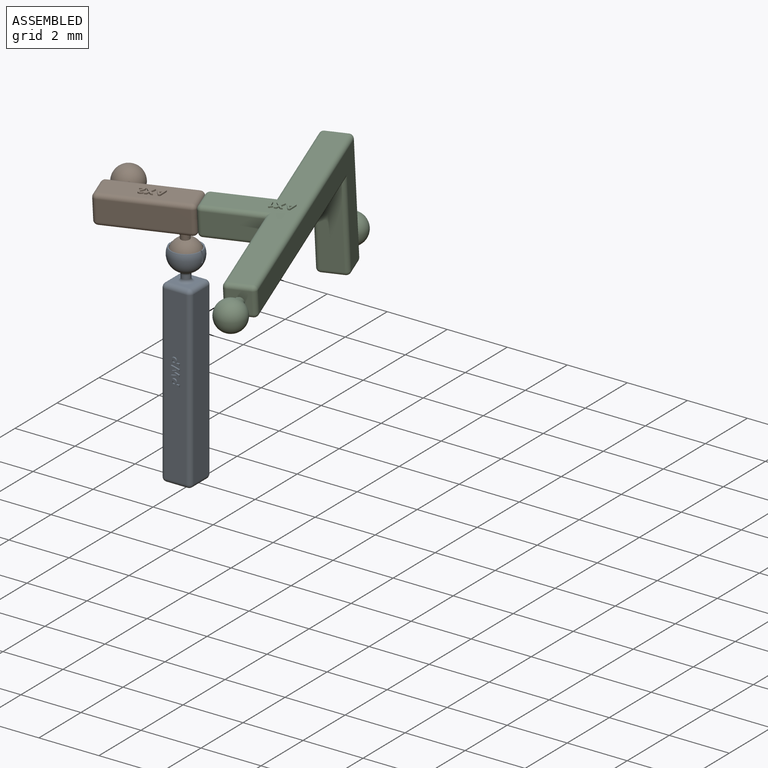
[diagram: assembled view]
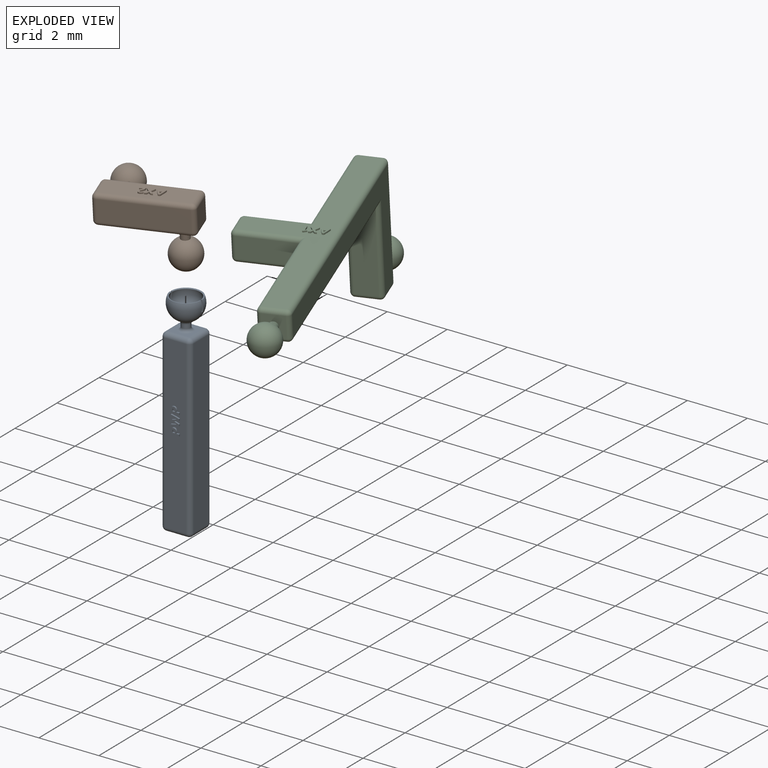
[diagram: exploded view]
GUIDED TOUR — FREECAD ASSEMBLY "assembly3wb_test"

This assembly has 3 components, labeled P0..P2 below (a component is one placed body or linked part; the same part can appear more than once), held together by 0 modeled joints plus 2 derived contact edges. A joint is a constraint between two components; its type names the relative motion it leaves free:
  CONTACT — a derived adjacency edge — the two components touch in the source model (clearance under 2% of the assembly's diagonal); it is measured from the geometry, not a modeled constraint.
Axis/direction vectors are unit vectors and 'through' points are millimeter coordinates, both in the assembly's world frame.

MATES
  1. CONTACT "contact_0_1": P0 <-> P1, contact direction (0.000, 0.000, 1.000) through (0.57, -0.03, 3.83) mm (derived from contact, not a modeled constraint)
  2. CONTACT "contact_1_2": P1 <-> P2, contact direction (0.838, 0.219, -0.500) through (1.09, -0.32, 5.96) mm (derived from contact, not a modeled constraint)

ASSEMBLY ORDER
  1. P1 — the base component [order heuristic]
  2. P0 — core [order heuristic]
  3. P2 [order verified]
Order-tag legend:
  [order verified] — this step's position reverses a verified removal order: the component was checked to insert without passing through the ones already placed.
  [order heuristic] — the first 2 components form the assembly's core: parts whose collision-free extraction could not be verified, listed in mate-graph order.

Of the 3 components, 2 carry a construction recipe — the FreeCAD feature program (sketches with constraints, then the solid features that consume them) that regenerates the part from scratch, quoted from this document or from the linked companion document it references; the rest are supplied as boundary geometry only. The tour below walks the components in assembly order: each is shown spotlighted twice — in the assembled view, then in the exploded view, where a leader line traces a displaced component back to its assembled socket (components that stay in place when exploded have no leader line; saturated green if recipe-attached, orange if geometry-only; every other component desaturated gray) — followed by its recipe or geometry summary and the mates that hold it.
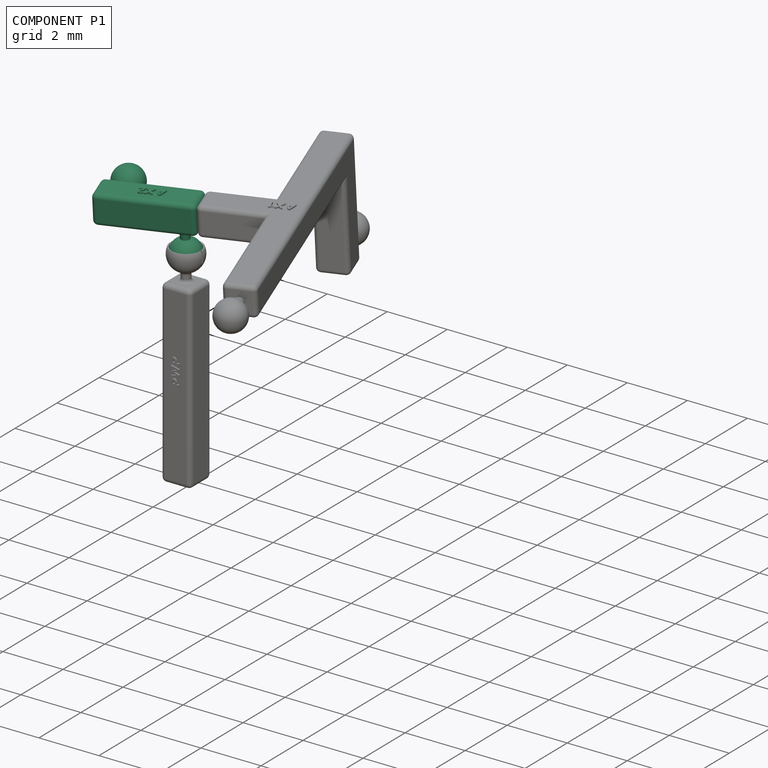
[diagram: component P1 — assembled]
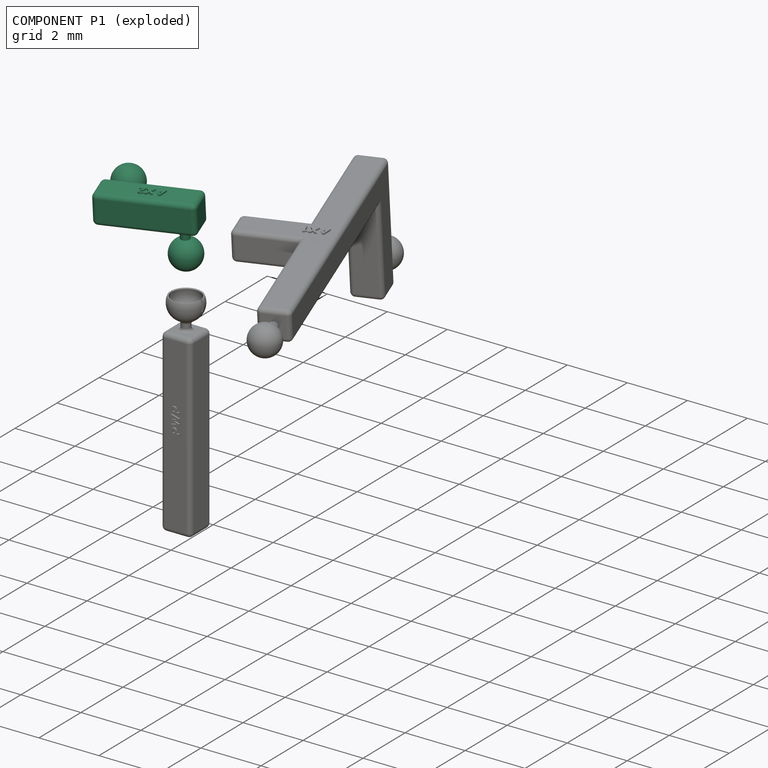
[diagram: component P1 — exploded]
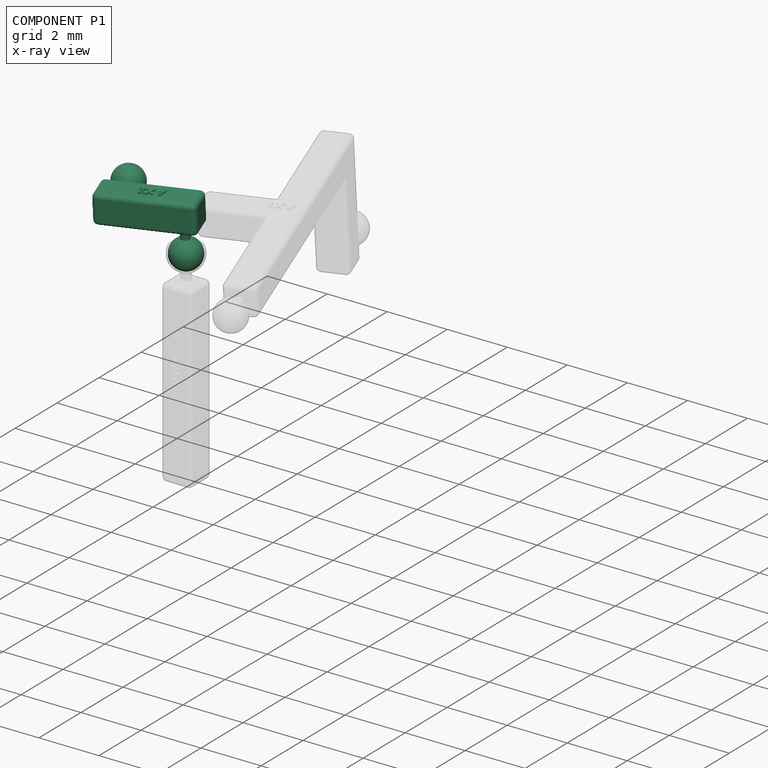
[diagram: component P1 — x-ray view]
COMPONENT P1 — recipe-attached ("AX2Body", a linked part whose construction recipe lives in a companion FreeCAD document of the same project; that document's serialized recipe follows).
Held by: resting contact with P0 (derived edge); resting contact with P2 (derived edge).
Construction recipe (the companion document, serialized — sketch geometry with constraints, then the solid features built on it; lengths are millimeters unless a unit is written):

FCSTD DOCUMENT  (FreeCAD 0.20R29177 (Git))
Label: ax2
License: All rights reserved
LicenseURL: http://en.wikipedia.org/wiki/All_rights_reserved
objects: PartDesign::Body×4, Sketcher::SketchObject×3, PartDesign::Pad×3, PartDesign::Fillet×2, PartDesign::FeatureBase×2, Spreadsheet::Sheet×1, PartDesign::Plane×1, PartDesign::Line×1, PartDesign::Revolution×1, Part::MultiFuse×1, Part::Part2DObjectPython×1, PartDesign::Point×1
note: 26 computed .brp shape members not serialized (recipe doc carries the construction recipe); baked Part::Feature solids carry a one-line shape summary decoded from their .brp

FEATURE [Spreadsheet::Sheet] Spreadsheet
  cells = A2=Reference ; A3=RefLength; B3(RefLength)==1mm; A5=Main Beam; A6=Length; B6(Length)==3 * RefLength; A7=Width; B7(Width)==1 * RefLength; A8=Height; B8(Height)==1 * RefLength; A9=EdgeFilletRadius; B9(EdgeFilletRadius)==0.15 * RefLength; A11=BallJoint Common; A12=ConnLength; B12(ConnLength)==0.3 * RefLength; A13=ConnDiameter; B13(ConnDiameter)==0.3 * RefLength; A14=BallDiameter; B14(BallDiameter)==1 * RefLength; A15=BallDatumPlanceZOffset; B15(BallDatumPlanceZOffset)==ConnLength + 0.5 * BallDiameter; A16=ConnPadLength; B16(ConnPadLength)==ConnLength + 0.5 * BallDiameter; A17=ConnFilletRadius; B17(ConnFilletRadius)==0.1 * RefLength; A19=BallJoint 1; A20=BallJoint1XPos; B20(BallJoint1XPos)==-0.5 * Length + 0.5 * BallDiameter; A21=BallJoint1YPos; B21(BallJoint1YPos)==0 * Width; A22=BallJoint1ZPos; B22(BallJoint1ZPos)==Height * -0.5; A24=BallJoint 2; A25=BallJoint2XPos; B25(BallJoint2XPos)==0.5 * Length - 0.5 * BallDiameter; A26=BallJoint2YPos; B26(BallJoint2YPos)==-0.5 * Width; A27=BallJoint2ZPos; B27(BallJoint2ZPos)==0 * Height; A29=Label; A30=LabelString; B30(LabelString)=AX2; A31=LabelSize; B31(LabelSize)==0.15 * RefLength; A32=LabelXPos; B32(LabelXPos)==-0.5 * RefLength; A33=LabelYPos; B33(LabelYPos)==-0.1 * RefLength; A34=LabelPadHeight; B34(LabelPadHeight)==0.05 * RefLength; A36=Ball 1 Center Point; A37=Ball1CenterX; B37(Ball1CenterX)==BallJoint1XPos; A38=Ball1CenterY; B38(Ball1CenterY)==BallJoint1YPos; A39=Ball1CenterZ; B39(Ball1CenterZ)==BallJoint1ZPos - ConnLength - 0.5 * BallDiameter
FEATURE [Sketcher::SketchObject] Sketch  label="BeamSketch"
  FullyConstrained = true
  MapMode = 5
  Support = -> [XY_Plane]
  expr: Constraints[10] = Spreadsheet.Width
  expr: Constraints[9] = Spreadsheet.Length
  sketch-geometry (4):
    g0: LineSegment StartX=-1.5 StartY=0.5 StartZ=0 EndX=1.5 EndY=0.5 EndZ=0
    g1: LineSegment StartX=1.5 StartY=0.5 StartZ=0 EndX=1.5 EndY=-0.5 EndZ=0
    g2: LineSegment StartX=1.5 StartY=-0.5 StartZ=0 EndX=-1.5 EndY=-0.5 EndZ=0
    g3: LineSegment StartX=-1.5 StartY=-0.5 StartZ=0 EndX=-1.5 EndY=0.5 EndZ=0
  constraints (11):
    c: Coincident(g0,g1)
    c: Coincident(g1,g2)
    c: Coincident(g2,g3)
    c: Coincident(g3,g0)
    c: Horizontal(g0)
    c: Horizontal(g2)
    c: Vertical(g1)
    c: Vertical(g3)
    c: Symmetric(g0,g1,g-1)
    c: DistanceX(g0,g0) = 3
    c: DistanceY(g1,g1) = 1
FEATURE [PartDesign::Pad] Pad  label="BeamPad"
  Direction = (0,0,1)
  Length = 1
  Length2 = 10
  Midplane = true
  Profile = -> Sketch
  ReferenceAxis = -> Sketch [N_Axis]
  Type = 0
  expr: Length = Spreadsheet.Height
FEATURE [PartDesign::Fillet] Fillet
  Base = -> Pad [Edge10]
  BaseFeature = -> Pad
  Radius = 0.15
  SupportTransform = false
  UseAllEdges = true
  expr: Radius = Spreadsheet.EdgeFilletRadius
FEATURE [PartDesign::Body] Body  label="BeamBody"
  Group = -> [Sketch,Pad,Fillet]
  Origin = -> Origin
  Tip = -> Fillet
FEATURE [Sketcher::SketchObject] Sketch001  label="ConnSketch"
  FullyConstrained = true
  MapMode = 5
  Support = -> [XY_Plane001]
  expr: Constraints[1] = Spreadsheet.ConnDiameter
  sketch-geometry (1):
    g0: Circle CenterX=0 CenterY=0 CenterZ=0 NormalX=0 NormalY=0 NormalZ=1 AngleXU=0 Radius=0.15
  constraints (2):
    c: Coincident(g0,g-1)
    c: Diameter(g0) = 0.3
FEATURE [PartDesign::Pad] Pad001  label="ConnPad"
  Direction = (0,0,1)
  Length = 0.8
  Length2 = 10
  Profile = -> Sketch001
  ReferenceAxis = -> Sketch001 [N_Axis]
  Type = 0
  expr: Length = Spreadsheet.ConnPadLength
FEATURE [PartDesign::Plane] DatumPlane  label="BallDatumPlane"
  AttachmentOffset = pos=(0,0.8,0) rot=(0,0,1;0rad)
  Length = 60
  MapMode = 5
  Placement = pos=(0,-2e-16,0.8) rot=(1,0,0;1.5708rad)
  ResizeMode = 0
  Support = -> [XZ_Plane001]
  Width = 60
  expr: .AttachmentOffset.Base.y = Spreadsheet.BallDatumPlanceZOffset
FEATURE [Sketcher::SketchObject] Sketch002  label="BallSketch"
  FullyConstrained = true
  MapMode = 5
  Placement = pos=(0,-2e-16,0.8) rot=(1,0,0;1.5708rad)
  Support = -> [DatumPlane]
  expr: Constraints[7] = Spreadsheet.BallDiameter
  sketch-geometry (3):
    g0: ArcOfCircle CenterX=-1.2e-15 CenterY=0 CenterZ=0 NormalX=0 NormalY=0 NormalZ=1 AngleXU=0 Radius=0.5 StartAngle=1.5708 EndAngle=4.71239
    g1: LineSegment StartX=-1.2e-15 StartY=0.5 StartZ=0 EndX=-1.2e-15 EndY=0 EndZ=0
    g2: LineSegment StartX=-1.2e-15 StartY=0 StartZ=0 EndX=-1.2e-15 EndY=-0.5 EndZ=0
  constraints (8):
    c: Vertical(g1)
    c: Vertical(g2)
    c: Coincident(g0,g2)
    c: Coincident(g0,g1)
    c: Coincident(g0,g1)
    c: Coincident(g2,g0)
    c: Coincident(g0,g-1)
    c: DistanceY(g0,g0) = 1
FEATURE [PartDesign::Line] DatumLine
  AttacherType = Attacher::AttachEngineLine
  Length = 20
  MapMode = 29
  Placement = pos=(-1.2e-15,-2e-16,0.8) rot=(0,1,0;3.14159rad)
  ResizeMode = 0
  Support = -> [Sketch002]
FEATURE [PartDesign::Revolution] Revolution  label="BallRevolution"
  Angle = 360
  Axis = (0,2e-16,-1)
  Base = (-1.2e-15,-2e-16,0.8)
  BaseFeature = -> Pad001
  Profile = -> Sketch002
  ReferenceAxis = -> DatumLine
FEATURE [PartDesign::Body] Body001  label="BallJointBody1"
  Group = -> [Sketch001,Pad001,DatumPlane,Sketch002,DatumLine,Revolution]
  Origin = -> Origin001
  Placement = pos=(-1,0,-0.5) rot=(1,0,0;3.14159rad)
  Tip = -> Revolution
  expr: .Placement.Base.x = Spreadsheet.BallJoint1XPos
  expr: .Placement.Base.z = Spreadsheet.BallJoint1ZPos
FEATURE [PartDesign::FeatureBase] Clone
  BaseFeature = -> Body001
FEATURE [PartDesign::Body] Body002  label="BallJointBody2"
  BaseFeature = -> Body001
  Group = -> [Clone]
  Origin = -> Origin002
  Placement = pos=(1,-0.5,0) rot=(1,0,0;1.5708rad)
  Tip = -> Clone
  expr: .Placement.Base.x = Spreadsheet.BallJoint2XPos
  expr: .Placement.Base.y = Spreadsheet.BallJoint2YPos
  expr: .Placement.Base.z = Spreadsheet.BallJoint2ZPos
FEATURE [Part::MultiFuse] Fusion  label="BeamAndBallJointFusion"
  Shapes = -> [Body,Body001,Body002]
FEATURE [PartDesign::FeatureBase] BaseFeature
  BaseFeature = -> Fusion
FEATURE [PartDesign::Fillet] Fillet001  label="ConnFillet"
  Base = -> BaseFeature [Edge38,Edge27]
  BaseFeature = -> BaseFeature
  Radius = 0.1
  SupportTransform = false
  UseAllEdges = false
  expr: Radius = Spreadsheet.ConnFilletRadius
FEATURE [Part::Part2DObjectPython] ShapeString  label="LabelShapeString"  # Draft 2D object (typed FeaturePython)
  FontFile = <userpath>/work/cad/wing_hinge_cad_models/rev2/font/Ubuntu-B.ttf
  MakeFace = true
  Placement = pos=(-0.5,-0.1,0.5) rot=(0,0,1;0rad)
  Size = 0.15
  String = AX2
  Tracking = 0
  expr: .Placement.Base.x = Spreadsheet.LabelXPos
  expr: .Placement.Base.y = Spreadsheet.LabelYPos
  expr: Size = Spreadsheet.LabelSize
  expr: String = Spreadsheet.LabelString
FEATURE [PartDesign::Pad] Pad002  label="LabelPad"
  BaseFeature = -> Fillet001
  Direction = (0,0,1)
  Length = 0.05
  Length2 = 10
  Profile = -> ShapeString
  ReferenceAxis = -> ShapeString [N_Axis]
  Type = 0
  expr: Length = Spreadsheet.LabelPadHeight
FEATURE [PartDesign::Point] DatumPoint
  AttacherType = Attacher::AttachEnginePoint
  AttachmentOffset = pos=(-1,0,-1.3) rot=(0,0,1;0rad)
  MapMode = 32
  Placement = pos=(-1,0,-1.3) rot=(0,0,1;0rad)
  Support = -> [Pad002]
  expr: .AttachmentOffset.Base.x = Spreadsheet.Ball1CenterX
  expr: .AttachmentOffset.Base.y = Spreadsheet.Ball1CenterY
  expr: .AttachmentOffset.Base.z = Spreadsheet.Ball1CenterZ
FEATURE [PartDesign::Body] Body003  label="AX2Body"
  BaseFeature = -> Fusion
  Group = -> [BaseFeature,Fillet001,ShapeString,Pad002,DatumPoint]
  Origin = -> Origin003
  Tip = -> Pad002
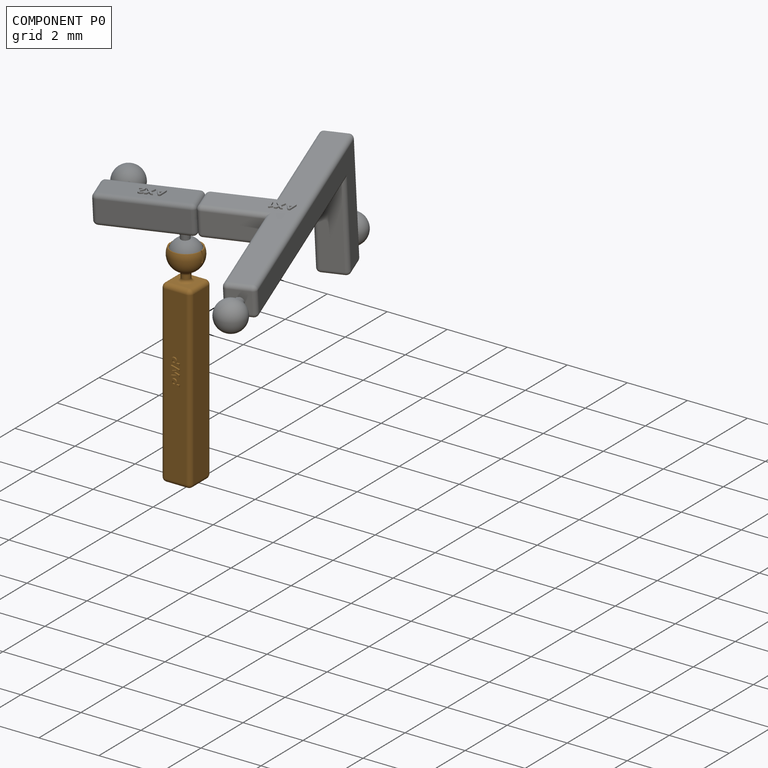
[diagram: component P0 — assembled]
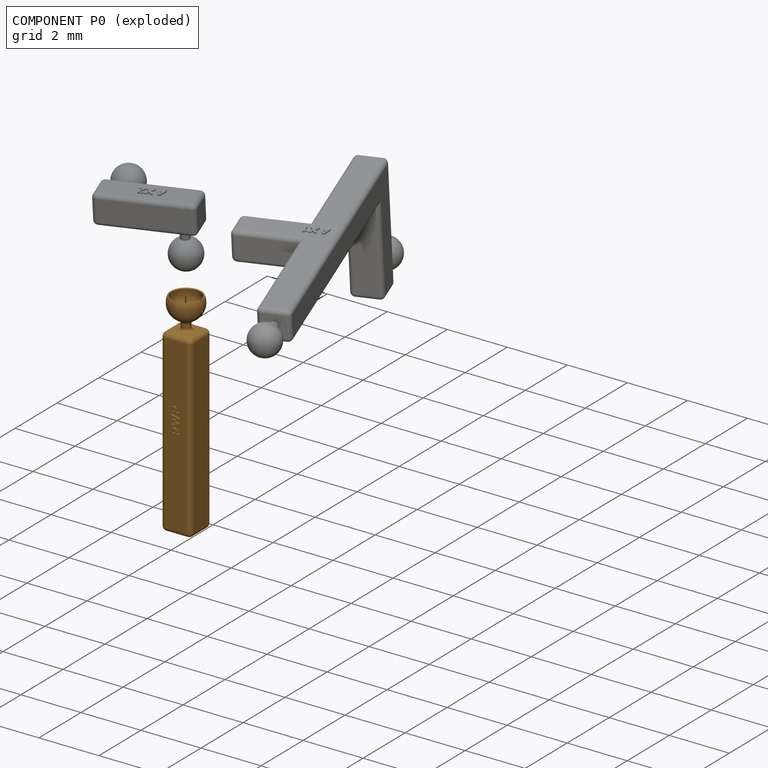
[diagram: component P0 — exploded]
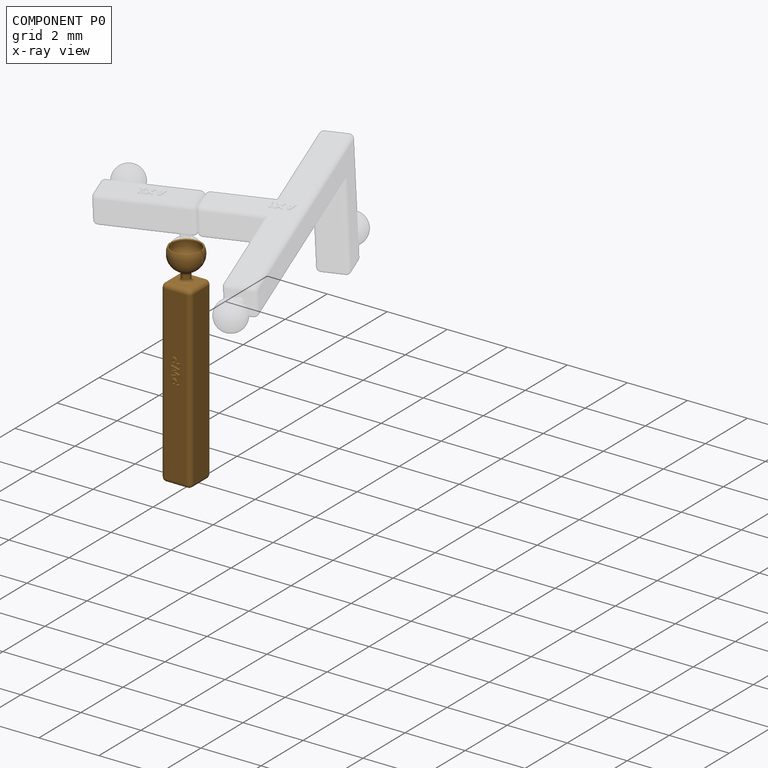
[diagram: component P0 — x-ray view]
COMPONENT P0 — geometry summary ("Body"; no construction recipe available for this part):
  bounding box: 7.0 x 1.1 x 1.1 mm
  tessellated surface: 37,766 triangles
  volume: 6 mm^3 (69% of its bounding box)
  symmetry: mirror-symmetric across its x mid-plane, y mid-plane
Held by: resting contact with P1 (derived edge).
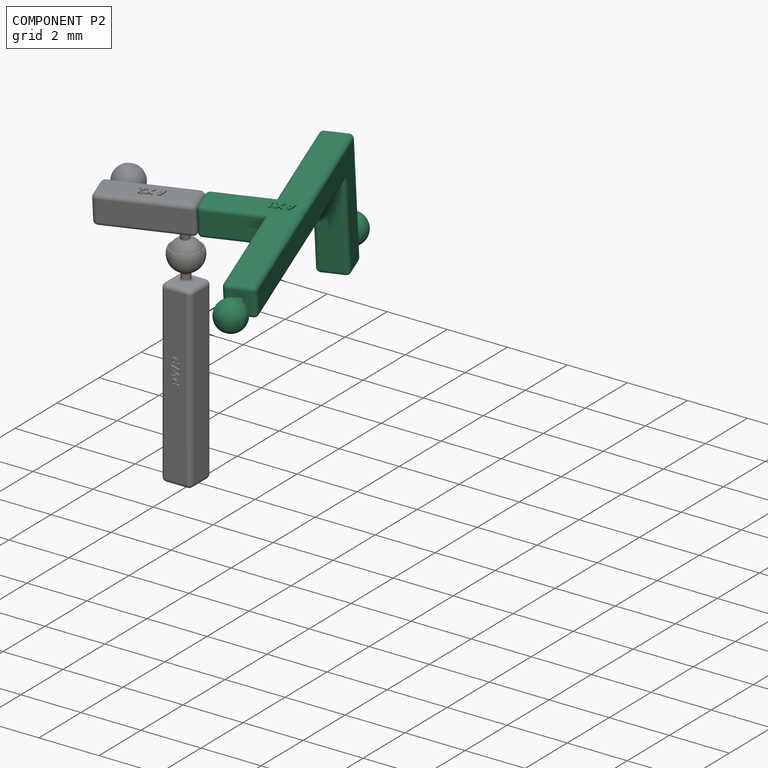
[diagram: component P2 — assembled]
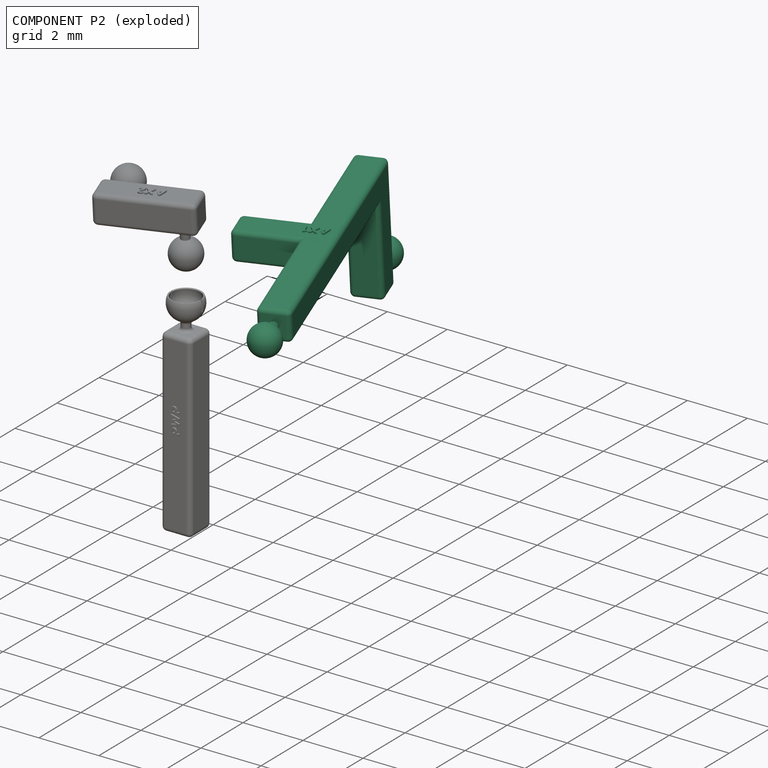
[diagram: component P2 — exploded]
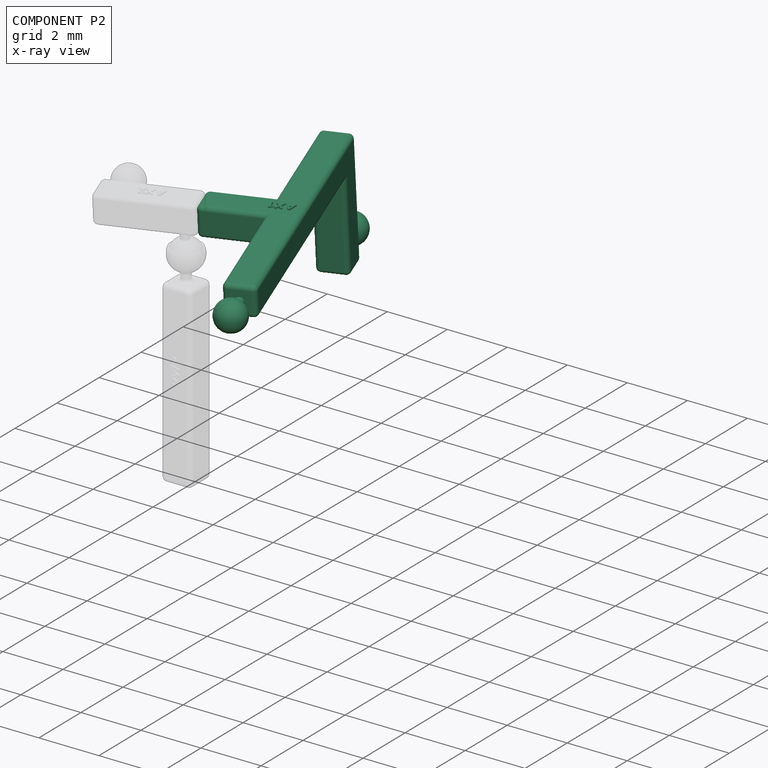
[diagram: component P2 — x-ray view]
COMPONENT P2 — recipe-attached ("CombinedArmBody", a linked part whose construction recipe lives in a companion FreeCAD document of the same project; that document's serialized recipe follows).
Held by: resting contact with P1 (derived edge).
Construction recipe (the companion document, serialized — sketch geometry with constraints, then the solid features built on it; lengths are millimeters unless a unit is written):

FCSTD DOCUMENT  (FreeCAD 0.20R29177 (Git))
Label: ax1
License: All rights reserved
LicenseURL: http://en.wikipedia.org/wiki/All_rights_reserved
objects: PartDesign::Plane×8, Sketcher::SketchObject×8, PartDesign::Pad×7, PartDesign::Body×5, PartDesign::Fillet×4, PartDesign::Line×2, PartDesign::Revolution×2, PartDesign::Point×2, Spreadsheet::Sheet×1, Part::MultiFuse×1, PartDesign::FeatureBase×1, Part::Part2DObjectPython×1
note: 54 computed .brp shape members not serialized (recipe doc carries the construction recipe); baked Part::Feature solids carry a one-line shape summary decoded from their .brp

FEATURE [Spreadsheet::Sheet] Spreadsheet
  cells = A2=Design Parameters; A3=RefLength; B3(RefLength)==1mm; A4=RightArmLength; B4(RightArmLength)==5 * RefLength; A5=LeftArmLength; B5(LeftArmLength)==5 * RefLength; A6=VertArmLength; B6(VertArmLength)==4 * RefLength; A7=FrontArmLength; B7(FrontArmLength)==3 * RefLength; A8=BeamWidth; B8(BeamWidth)==1 * RefLength; A9=BeamHeight; B9(BeamHeight)==1 * RefLength; A10=BallJointDiam; B10(BallJointDiam)==1 * RefLength; A11=BallJointConnDiam; B11(BallJointConnDiam)==0.3 * RefLength; A12=BallJointConnLength; B12(BallJointConnLength)==0.3 * RefLength; A13=BallJointConnPadLength; B13(BallJointConnPadLength)==BallJointConnLength + 0.5 * BallJointDiam; A14=RightArmBaseDatumPlaneXOffset; B14(RightArmBaseDatumPlaneXOffset)==0.5 * BeamHeight; A15=RightArmTipDatumPlaneXOffset; B15(RightArmTipDatumPlaneXOffset)==RightArmLength - 0.5 * BeamHeight; A16=RightArmBallJointDatumPlaneXOffset; B16(RightArmBallJointDatumPlaneXOffset)==RightArmLength - 0.5 * BeamHeight + BallJointConnLength + 0.5 * BallJointDiam; A17=VertArmBaseDatumPlaneXOffet; B17(VertArmBaseDatumPlaneXOffet)==LeftArmLength - BeamHeight; A18=VertArmBaseDatumPlaneZOffset; B18(VertArmBaseDatumPlaneZOffset)==0.5 * BeamHeight; A19=VertArmTipDatumPlaneZOffset; B19(VertArmTipDatumPlaneZOffset)==VertArmLength - 0.5 * BeamHeight; A20=LeftArmBaseDatumPlaneXOffset; B20(LeftArmBaseDatumPlaneXOffset)==0.5 * BeamHeight; A21=LeftArmTipDatumPlaneXOffset; B21(LeftArmTipDatumPlaneXOffset)==LeftArmLength - 0.5 * BeamHeight; A22=LeftArmDatumPlaneZOffset; B22(LeftArmDatumPlaneZOffset)==0mm; A23=LeftBallJointConnDatumPlaneZOffset; B23(LeftBallJointConnDatumPlaneZOffset)==VertArmLength - BeamHeight; A24=LeftBallJointDatumPlaneXOffset; B24(LeftBallJointDatumPlaneXOffset)==LeftArmLength - 0.5 * BeamHeight + BallJointConnLength + 0.5 * BallJointDiam; A25=FrontArmBaseDatumPlaneYOffset; B25(FrontArmBaseDatumPlaneYOffset)==0.5 * BeamWidth; A26=EdgeFilletRadius; B26(EdgeFilletRadius)==0.15 * RefLength; A27=BallJointConnFilletRadius; B27(BallJointConnFilletRadius)==0.1 * RefLength; A28=LabelString; B28(LabelString)=AX1; A29=LabelSize; B29(LabelSize)==0.15 * RefLength; A30=LabelPadHeight; B30(LabelPadHeight)==0.05 * RefLength
FEATURE [PartDesign::Plane] DatumPlane  label="RightArmBaseDatumPlane"
  AttachmentOffset = pos=(0,0,-0.5) rot=(0,0,1;0rad)
  Length = 60
  MapMode = 5
  Placement = pos=(-0.5,1e-16,-1e-16) rot=(0.57735,0.57735,0.57735;2.0944rad)
  ResizeMode = 0
  Support = -> [YZ_Plane]
  Width = 60
  expr: .AttachmentOffset.Base.z = -Spreadsheet.RightArmBaseDatumPlaneXOffset
FEATURE [Sketcher::SketchObject] Sketch  label="RightArmSketch"
  FullyConstrained = true
  MapMode = 5
  Placement = pos=(-0.5,1e-16,-1e-16) rot=(0.57735,0.57735,0.57735;2.0944rad)
  Support = -> [DatumPlane]
  expr: Constraints[20] = Spreadsheet.EdgeFilletRadius
  expr: Constraints[21] = Spreadsheet.BeamHeight
  expr: Constraints[22] = Spreadsheet.BeamWidth
  sketch-geometry (10):
    g0: ArcOfCircle CenterX=-0.35 CenterY=0.35 CenterZ=0 NormalX=0 NormalY=0 NormalZ=1 AngleXU=0 Radius=0.15 StartAngle=1.5708 EndAngle=3.14159
    g1: LineSegment StartX=-0.35 StartY=0.5 StartZ=0 EndX=0.35 EndY=0.5 EndZ=0
    g2: ArcOfCircle CenterX=0.35 CenterY=0.35 CenterZ=0 NormalX=0 NormalY=0 NormalZ=1 AngleXU=0 Radius=0.15 StartAngle=0 EndAngle=1.5708
    g3: LineSegment StartX=0.5 StartY=0.35 StartZ=0 EndX=0.5 EndY=-0.35 EndZ=0
    g4: ArcOfCircle CenterX=0.35 CenterY=-0.35 CenterZ=0 NormalX=0 NormalY=0 NormalZ=1 AngleXU=0 Radius=0.15 StartAngle=4.71239 EndAngle=6.28319
    g5: LineSegment StartX=0.35 StartY=-0.5 StartZ=0 EndX=-0.35 EndY=-0.5 EndZ=0
    g6: ArcOfCircle CenterX=-0.35 CenterY=-0.35 CenterZ=0 NormalX=0 NormalY=0 NormalZ=1 AngleXU=0 Radius=0.15 StartAngle=3.14159 EndAngle=4.71239
    g7: LineSegment StartX=-0.5 StartY=-0.35 StartZ=0 EndX=-0.5 EndY=0.35 EndZ=0
    g8: GeomPoint X=-0.5 Y=0.5 Z=0
    g9: GeomPoint X=0.5 Y=-0.5 Z=0
  constraints (23):
    c: Tangent(g0,g1) = 1.5708
    c: Tangent(g1,g2) = 1.5708
    c: Tangent(g2,g3) = 1.5708
    c: Tangent(g3,g4) = 1.5708
    c: Tangent(g4,g5) = 1.5708
    c: Tangent(g5,g6) = 1.5708
    c: Tangent(g6,g7) = 1.5708
    c: Tangent(g7,g0) = 1.5708
    c: Horizontal(g1)
    c: Horizontal(g5)
    c: Vertical(g3)
    c: Vertical(g7)
    c: Equal(g0,g2)
    c: Equal(g2,g4)
    c: Equal(g4,g6)
    c: PointOnObject(g8,g1)
    c: PointOnObject(g8,g7)
    c: PointOnObject(g9,g3)
    c: PointOnObject(g9,g5)
    c: Symmetric(g0,g4,g-1)
    c: Radius(g0) = 0.15
    c: DistanceY(g4,g1) = 1
    c: DistanceX(g6,g3) = 1
FEATURE [PartDesign::Pad] Pad  label="RightArmPad"
  Direction = (1,-1e-16,1e-16)
  Length = 5
  Length2 = 10
  Placement = pos=(-0.5,0,0) rot=(0.57735,0.57735,0.57735;2.0944rad)
  Profile = -> Sketch
  ReferenceAxis = -> Sketch [N_Axis]
  Type = 0
  expr: Length = Spreadsheet.RightArmLength
FEATURE [PartDesign::Fillet] Fillet  label="RightArmEndFillet"
  Base = -> Pad [Face9,Face10]
  BaseFeature = -> Pad
  Placement = pos=(-0.5,0,0) rot=(0.57735,0.57735,0.57735;2.0944rad)
  Radius = 0.15
  SupportTransform = false
  UseAllEdges = false
  expr: Radius = Spreadsheet.EdgeFilletRadius
FEATURE [PartDesign::Body] Body  label="RightArmBody"
  Group = -> [DatumPlane,Sketch,Pad,Fillet]
  Origin = -> Origin
  Tip = -> Fillet
FEATURE [PartDesign::Plane] DatumPlane002  label="VertArmBaseDatumPlane"
  AttachmentOffset = pos=(-4,0,0.5) rot=(0,0,1;0rad)
  Length = 60
  MapMode = 5
  Placement = pos=(-4,0,0.5) rot=(0,0,1;0rad)
  ResizeMode = 0
  Support = -> [XY_Plane001]
  Width = 60
  expr: .AttachmentOffset.Base.x = -Spreadsheet.VertArmBaseDatumPlaneXOffet
  expr: .AttachmentOffset.Base.z = Spreadsheet.VertArmBaseDatumPlaneZOffset
FEATURE [Sketcher::SketchObject] Sketch001  label="VertArmSketch"
  FullyConstrained = true
  MapMode = 5
  Placement = pos=(-4,0,0.5) rot=(0,0,1;0rad)
  Support = -> [DatumPlane002]
  expr: Constraints[20] = Spreadsheet.EdgeFilletRadius
  expr: Constraints[21] = Spreadsheet.BeamHeight
  expr: Constraints[22] = Spreadsheet.BeamWidth
  sketch-geometry (10):
    g0: ArcOfCircle CenterX=-0.35 CenterY=0.35 CenterZ=0 NormalX=0 NormalY=0 NormalZ=1 AngleXU=0 Radius=0.15 StartAngle=1.5708 EndAngle=3.14159
    g1: LineSegment StartX=-0.35 StartY=0.5 StartZ=0 EndX=0.35 EndY=0.5 EndZ=0
    g2: ArcOfCircle CenterX=0.35 CenterY=0.35 CenterZ=0 NormalX=0 NormalY=0 NormalZ=1 AngleXU=0 Radius=0.15 StartAngle=3.23e-14 EndAngle=1.5708
    g3: LineSegment StartX=0.5 StartY=0.35 StartZ=0 EndX=0.5 EndY=-0.35 EndZ=0
    g4: ArcOfCircle CenterX=0.35 CenterY=-0.35 CenterZ=0 NormalX=0 NormalY=0 NormalZ=1 AngleXU=0 Radius=0.15 StartAngle=4.71239 EndAngle=6.28319
    g5: LineSegment StartX=0.35 StartY=-0.5 StartZ=0 EndX=-0.35 EndY=-0.5 EndZ=0
    g6: ArcOfCircle CenterX=-0.35 CenterY=-0.35 CenterZ=0 NormalX=0 NormalY=0 NormalZ=1 AngleXU=0 Radius=0.15 StartAngle=3.14159 EndAngle=4.71239
    g7: LineSegment StartX=-0.5 StartY=-0.35 StartZ=0 EndX=-0.5 EndY=0.35 EndZ=0
    g8: GeomPoint X=-0.5 Y=0.5 Z=0
    g9: GeomPoint X=0.5 Y=-0.5 Z=0
  constraints (23):
    c: Tangent(g0,g1) = 1.5708
    c: Tangent(g1,g2) = 1.5708
    c: Tangent(g2,g3) = 1.5708
    c: Tangent(g3,g4) = 1.5708
    c: Tangent(g4,g5) = 1.5708
    c: Tangent(g5,g6) = 1.5708
    c: Tangent(g6,g7) = 1.5708
    c: Tangent(g7,g0) = 1.5708
    c: Horizontal(g1)
    c: Horizontal(g5)
    c: Vertical(g3)
    c: Vertical(g7)
    c: Equal(g0,g2)
    c: Equal(g2,g4)
    c: Equal(g4,g6)
    c: PointOnObject(g8,g1)
    c: PointOnObject(g8,g7)
    c: PointOnObject(g9,g3)
    c: PointOnObject(g9,g5)
    c: Symmetric(g4,g0,g-1)
    c: Radius(g0) = 0.15
    c: DistanceX(g6,g3) = 1
    c: DistanceY(g4,g1) = 1
FEATURE [PartDesign::Pad] Pad001  label="VertArmPad"
  Direction = (0,0,1)
  Length = 4
  Length2 = 10
  Placement = pos=(-4,0,0.5) rot=(0,0,1;0rad)
  Profile = -> Sketch001
  ReferenceAxis = -> Sketch001 [N_Axis]
  Reversed = true
  Type = 0
  expr: Length = Spreadsheet.VertArmLength
FEATURE [PartDesign::Fillet] Fillet001  label="VertArmEndFillet"
  Base = -> Pad001 [Face9,Face10]
  BaseFeature = -> Pad001
  Placement = pos=(-4,0,0.5) rot=(0,0,1;0rad)
  Radius = 0.15
  SupportTransform = false
  UseAllEdges = false
  expr: Radius = Spreadsheet.EdgeFilletRadius
FEATURE [PartDesign::Body] Body001  label="VertArmBody"
  Group = -> [DatumPlane002,Sketch001,Pad001,Fillet001]
  Origin = -> Origin001
  Tip = -> Fillet001
FEATURE [PartDesign::Plane] DatumPlane003  label="LeftArmBaseDatumPlane"
  AttachmentOffset = pos=(0,0,0.5) rot=(0,0,1;0rad)
  Length = 60
  MapMode = 5
  Placement = pos=(0.5,-1e-16,1e-16) rot=(0.57735,0.57735,0.57735;2.0944rad)
  ResizeMode = 0
  Support = -> [YZ_Plane002]
  Width = 60
  expr: .AttachmentOffset.Base.y = -Spreadsheet.LeftArmDatumPlaneZOffset
  expr: .AttachmentOffset.Base.z = Spreadsheet.LeftArmBaseDatumPlaneXOffset
FEATURE [Sketcher::SketchObject] Sketch002  label="LeftArmSketch"
  FullyConstrained = true
  MapMode = 5
  Placement = pos=(0.5,-1e-16,1e-16) rot=(0.57735,0.57735,0.57735;2.0944rad)
  Support = -> [DatumPlane003]
  expr: Constraints[20] = Spreadsheet.EdgeFilletRadius
  expr: Constraints[21] = Spreadsheet.BeamHeight
  expr: Constraints[22] = Spreadsheet.BeamWidth
  sketch-geometry (10):
    g0: ArcOfCircle CenterX=-0.35 CenterY=0.35 CenterZ=0 NormalX=0 NormalY=0 NormalZ=1 AngleXU=0 Radius=0.15 StartAngle=1.5708 EndAngle=3.14159
    g1: LineSegment StartX=-0.35 StartY=0.5 StartZ=0 EndX=0.35 EndY=0.5 EndZ=0
    g2: ArcOfCircle CenterX=0.35 CenterY=0.35 CenterZ=0 NormalX=0 NormalY=0 NormalZ=1 AngleXU=0 Radius=0.15 StartAngle=3e-16 EndAngle=1.5708
    g3: LineSegment StartX=0.5 StartY=0.35 StartZ=0 EndX=0.5 EndY=-0.35 EndZ=0
    g4: ArcOfCircle CenterX=0.35 CenterY=-0.35 CenterZ=0 NormalX=0 NormalY=0 NormalZ=1 AngleXU=0 Radius=0.15 StartAngle=4.71239 EndAngle=6.28319
    g5: LineSegment StartX=0.35 StartY=-0.5 StartZ=0 EndX=-0.35 EndY=-0.5 EndZ=0
    g6: ArcOfCircle CenterX=-0.35 CenterY=-0.35 CenterZ=0 NormalX=0 NormalY=0 NormalZ=1 AngleXU=0 Radius=0.15 StartAngle=3.14159 EndAngle=4.71239
    g7: LineSegment StartX=-0.5 StartY=-0.35 StartZ=0 EndX=-0.5 EndY=0.35 EndZ=0
    g8: GeomPoint X=-0.5 Y=0.5 Z=0
    g9: GeomPoint X=0.5 Y=-0.5 Z=0
  constraints (23):
    c: Tangent(g0,g1) = 1.5708
    c: Tangent(g1,g2) = 1.5708
    c: Tangent(g2,g3) = 1.5708
    c: Tangent(g3,g4) = 1.5708
    c: Tangent(g4,g5) = 1.5708
    c: Tangent(g5,g6) = 1.5708
    c: Tangent(g6,g7) = 1.5708
    c: Tangent(g7,g0) = 1.5708
    c: Horizontal(g1)
    c: Horizontal(g5)
    c: Vertical(g3)
    c: Vertical(g7)
    c: Equal(g0,g2)
    c: Equal(g2,g4)
    c: Equal(g4,g6)
    c: PointOnObject(g8,g1)
    c: PointOnObject(g8,g7)
    c: PointOnObject(g9,g3)
    c: PointOnObject(g9,g5)
    c: Symmetric(g0,g4,g-1)
    c: Radius(g0) = 0.15
    c: DistanceY(g4,g1) = 1
    c: DistanceX(g6,g3) = 1
FEATURE [PartDesign::Pad] Pad002  label="LeftArmPad"
  Direction = (1,-1e-16,1e-16)
  Length = 5
  Length2 = 10
  Placement = pos=(0.5,0,0) rot=(0.57735,0.57735,0.57735;2.0944rad)
  Profile = -> Sketch002
  ReferenceAxis = -> Sketch002 [N_Axis]
  Reversed = true
  Type = 0
  expr: Length = Spreadsheet.LeftArmLength
FEATURE [PartDesign::Fillet] Fillet002  label="LeftArmEndFillet"
  Base = -> Pad002 [Face9,Face10]
  BaseFeature = -> Pad002
  Placement = pos=(0.5,0,0) rot=(0.57735,0.57735,0.57735;2.0944rad)
  Radius = 0.15
  SupportTransform = false
  UseAllEdges = false
  expr: Radius = Spreadsheet.EdgeFilletRadius
FEATURE [PartDesign::Body] Body002  label="LeftArmBody"
  Group = -> [DatumPlane003,Sketch002,Pad002,Fillet002]
  Origin = -> Origin002
  Tip = -> Fillet002
FEATURE [PartDesign::Plane] DatumPlane004  label="FrontArmBaseDatumPlane"
  AttachmentOffset = pos=(0,0,-0.5) rot=(0,0,1;0rad)
  Length = 60
  MapMode = 5
  Placement = pos=(0,0.5,1e-16) rot=(1,0,0;1.5708rad)
  ResizeMode = 0
  Support = -> [XZ_Plane003]
  Width = 60
  expr: .AttachmentOffset.Base.z = -Spreadsheet.FrontArmBaseDatumPlaneYOffset
FEATURE [Sketcher::SketchObject] Sketch003  label="FrontArmSketch"
  FullyConstrained = true
  MapMode = 5
  Placement = pos=(0,0.5,1e-16) rot=(1,0,0;1.5708rad)
  Support = -> [DatumPlane004]
  expr: Constraints[20] = Spreadsheet.EdgeFilletRadius
  expr: Constraints[21] = Spreadsheet.BeamHeight
  expr: Constraints[22] = Spreadsheet.BeamHeight
  sketch-geometry (10):
    g0: ArcOfCircle CenterX=-0.35 CenterY=0.35 CenterZ=0 NormalX=0 NormalY=0 NormalZ=1 AngleXU=0 Radius=0.15 StartAngle=1.5708 EndAngle=3.14159
    g1: LineSegment StartX=-0.35 StartY=0.5 StartZ=0 EndX=0.35 EndY=0.5 EndZ=0
    g2: ArcOfCircle CenterX=0.35 CenterY=0.35 CenterZ=0 NormalX=0 NormalY=0 NormalZ=1 AngleXU=0 Radius=0.15 StartAngle=-6.7943e-11 EndAngle=1.5708
    g3: LineSegment StartX=0.5 StartY=0.35 StartZ=0 EndX=0.5 EndY=-0.35 EndZ=0
    g4: ArcOfCircle CenterX=0.35 CenterY=-0.35 CenterZ=0 NormalX=0 NormalY=0 NormalZ=1 AngleXU=0 Radius=0.15 StartAngle=4.71239 EndAngle=6.28319
    g5: LineSegment StartX=0.35 StartY=-0.5 StartZ=0 EndX=-0.35 EndY=-0.5 EndZ=0
    g6: ArcOfCircle CenterX=-0.35 CenterY=-0.35 CenterZ=0 NormalX=0 NormalY=0 NormalZ=1 AngleXU=0 Radius=0.15 StartAngle=3.14159 EndAngle=4.71239
    g7: LineSegment StartX=-0.5 StartY=-0.35 StartZ=0 EndX=-0.5 EndY=0.35 EndZ=0
    g8: GeomPoint X=-0.5 Y=0.5 Z=0
    g9: GeomPoint X=0.5 Y=-0.5 Z=0
  constraints (23):
    c: Tangent(g0,g1) = 1.5708
    c: Tangent(g1,g2) = 1.5708
    c: Tangent(g2,g3) = 1.5708
    c: Tangent(g3,g4) = 1.5708
    c: Tangent(g4,g5) = 1.5708
    c: Tangent(g5,g6) = 1.5708
    c: Tangent(g6,g7) = 1.5708
    c: Tangent(g7,g0) = 1.5708
    c: Horizontal(g1)
    c: Horizontal(g5)
    c: Vertical(g3)
    c: Vertical(g7)
    c: Equal(g0,g2)
    c: Equal(g2,g4)
    c: Equal(g4,g6)
    c: PointOnObject(g8,g1)
    c: PointOnObject(g8,g7)
    c: PointOnObject(g9,g3)
    c: PointOnObject(g9,g5)
    c: Symmetric(g0,g4,g-1)
    c: Radius(g0) = 0.15
    c: DistanceX(g6,g3) = 1
    c: DistanceY(g4,g1) = 1
FEATURE [PartDesign::Pad] Pad003  label="FrontArmPad"
  Direction = (0,-1,-2e-16)
  Length = 3
  Length2 = 10
  Placement = pos=(0,0.5,0) rot=(1,0,0;1.5708rad)
  Profile = -> Sketch003
  ReferenceAxis = -> Sketch003 [N_Axis]
  Type = 0
  expr: Length = Spreadsheet.FrontArmLength
FEATURE [PartDesign::Fillet] Fillet003  label="FrontArmEndFillet"
  Base = -> Pad003 [Face9,Face10]
  BaseFeature = -> Pad003
  Placement = pos=(0,0.5,0) rot=(1,0,0;1.5708rad)
  Radius = 0.15
  SupportTransform = false
  UseAllEdges = false
  expr: Radius = Spreadsheet.EdgeFilletRadius
FEATURE [PartDesign::Body] Body003  label="FrontArmBody"
  Group = -> [DatumPlane004,Sketch003,Pad003,Fillet003]
  Origin = -> Origin003
  Tip = -> Fillet003
FEATURE [Part::MultiFuse] Fusion
  Shapes = -> [Body,Body001,Body002,Body003]
FEATURE [PartDesign::FeatureBase] BaseFeature  label="CombinedArmBaseFeature"
  BaseFeature = -> Fusion
FEATURE [PartDesign::Plane] DatumPlane005  label="RightArmTipDatumPlane"
  AttachmentOffset = pos=(0,0,4.5) rot=(0,0,1;0rad)
  Length = 60
  MapMode = 5
  Placement = pos=(4.5,-1e-15,1e-15) rot=(0.57735,0.57735,0.57735;2.0944rad)
  ResizeMode = 0
  Support = -> [YZ_Plane004]
  Width = 60
  expr: .AttachmentOffset.Base.z = Spreadsheet.RightArmTipDatumPlaneXOffset
FEATURE [Sketcher::SketchObject] Sketch004  label="RightArmBallJointConnSketch"
  FullyConstrained = true
  MapMode = 5
  Placement = pos=(4.5,-1e-15,1e-15) rot=(0.57735,0.57735,0.57735;2.0944rad)
  Support = -> [DatumPlane005]
  expr: Constraints[1] = Spreadsheet.BallJointConnDiam
  sketch-geometry (1):
    g0: Circle CenterX=0 CenterY=0 CenterZ=0 NormalX=0 NormalY=0 NormalZ=1 AngleXU=0 Radius=0.15
  constraints (2):
    c: Coincident(g0,g-1)
    c: Diameter(g0) = 0.3
FEATURE [PartDesign::Pad] Pad004  label="RightArmBallJointConnPad"
  BaseFeature = -> BaseFeature
  Direction = (1,-1e-16,1e-16)
  Length = 0.8
  Length2 = 10
  Profile = -> Sketch004
  ReferenceAxis = -> Sketch004 [N_Axis]
  Type = 0
  expr: Length = Spreadsheet.BallJointConnPadLength
FEATURE [PartDesign::Plane] DatumPlane006  label="RightArmBallJointDatumPlane"
  AttachmentOffset = pos=(0,0,5.3) rot=(0,0,1;0rad)
  Length = 60
  MapMode = 5
  Placement = pos=(5.3,-1.2e-15,1.2e-15) rot=(0.57735,0.57735,0.57735;2.0944rad)
  ResizeMode = 0
  Support = -> [YZ_Plane004]
  Width = 60
  expr: .AttachmentOffset.Base.z = Spreadsheet.RightArmBallJointDatumPlaneXOffset
FEATURE [Sketcher::SketchObject] Sketch005  label="RightArmBallJointSketch"
  FullyConstrained = true
  MapMode = 5
  Placement = pos=(5.3,-1.2e-15,1.2e-15) rot=(0.57735,0.57735,0.57735;2.0944rad)
  Support = -> [DatumPlane006]
  expr: Constraints[6] = Spreadsheet.BallJointDiam
  sketch-geometry (3):
    g0: ArcOfCircle CenterX=-8e-16 CenterY=0 CenterZ=0 NormalX=0 NormalY=0 NormalZ=1 AngleXU=0 Radius=0.5 StartAngle=1.5708 EndAngle=4.71239
    g1: LineSegment StartX=-8e-16 StartY=0.5 StartZ=0 EndX=-8e-16 EndY=0 EndZ=0
    g2: LineSegment StartX=-8e-16 StartY=-0.5 StartZ=0 EndX=-8e-16 EndY=0 EndZ=0
  constraints (8):
    c: Coincident(g1,g2)
    c: Coincident(g1,g-1)
    c: Vertical(g1)
    c: Vertical(g2)
    c: Coincident(g0,g2)
    c: Coincident(g0,g1)
    c: DistanceY(g0,g0) = 1
    c: Coincident(g0,g1)
FEATURE [PartDesign::Line] DatumLine  label="RightArmBallJointDatumLine"
  AttacherType = Attacher::AttachEngineLine
  Length = 20
  MapMode = 29
  Placement = pos=(5.3,-1.9e-15,1.2e-15) rot=(0,1,0;3.14159rad)
  ResizeMode = 0
  Support = -> [Sketch005]
FEATURE [PartDesign::Revolution] Revolution  label="RightArmBallJointRevolution"
  Angle = 360
  Axis = (0,-1e-16,-1)
  Base = (5.3,-1.9e-15,1.2e-15)
  BaseFeature = -> Pad004
  Profile = -> Sketch005
  ReferenceAxis = -> DatumLine
FEATURE [PartDesign::Plane] DatumPlane007  label="LeftBallJointConnDatumPlane"
  AttachmentOffset = pos=(0,-3,-4.5) rot=(0,0,1;0rad)
  Length = 60
  MapMode = 5
  Placement = pos=(-4.5,3e-16,-3) rot=(0.57735,0.57735,0.57735;2.0944rad)
  ResizeMode = 0
  Support = -> [YZ_Plane004]
  Width = 60
  expr: .AttachmentOffset.Base.y = -Spreadsheet.LeftBallJointConnDatumPlaneZOffset
  expr: .AttachmentOffset.Base.z = -Spreadsheet.LeftArmTipDatumPlaneXOffset
FEATURE [Sketcher::SketchObject] Sketch006  label="LeftArmBallJointConnSketch"
  FullyConstrained = true
  MapMode = 5
  Placement = pos=(-4.5,3e-16,-3) rot=(0.57735,0.57735,0.57735;2.0944rad)
  Support = -> [DatumPlane007]
  expr: Constraints[1] = Spreadsheet.BallJointConnDiam
  sketch-geometry (1):
    g0: Circle CenterX=0 CenterY=0 CenterZ=0 NormalX=0 NormalY=0 NormalZ=1 AngleXU=0 Radius=0.15
  constraints (2):
    c: Coincident(g0,g-1)
    c: Diameter(g0) = 0.3
FEATURE [PartDesign::Pad] Pad005  label="LeftArmBallJointConnPad"
  BaseFeature = -> Revolution
  Direction = (1,-1e-16,1e-16)
  Length = 0.8
  Length2 = 10
  Profile = -> Sketch006
  ReferenceAxis = -> Sketch006 [N_Axis]
  Reversed = true
  Type = 0
  expr: Length = Spreadsheet.BallJointConnPadLength
FEATURE [PartDesign::Plane] DatumPlane008  label="LeftArmBallJointDatumPlane"
  AttachmentOffset = pos=(0,-3,-5.3) rot=(0,0,1;0rad)
  Length = 60
  MapMode = 5
  Placement = pos=(-5.3,5e-16,-3) rot=(0.57735,0.57735,0.57735;2.0944rad)
  ResizeMode = 0
  Support = -> [YZ_Plane004]
  Width = 60
  expr: .AttachmentOffset.Base.y = -Spreadsheet.LeftBallJointConnDatumPlaneZOffset
  expr: .AttachmentOffset.Base.z = -Spreadsheet.LeftBallJointDatumPlaneXOffset
FEATURE [Sketcher::SketchObject] Sketch007  label="LeftArmBallJointSketch"
  FullyConstrained = true
  MapMode = 5
  Placement = pos=(-5.3,5e-16,-3) rot=(0.57735,0.57735,0.57735;2.0944rad)
  Support = -> [DatumPlane008]
  expr: Constraints[7] = Spreadsheet.BallJointDiam
  sketch-geometry (3):
    g0: ArcOfCircle CenterX=-8e-16 CenterY=0 CenterZ=0 NormalX=0 NormalY=0 NormalZ=1 AngleXU=0 Radius=0.5 StartAngle=1.5708 EndAngle=4.71239
    g1: LineSegment StartX=-8e-16 StartY=0.5 StartZ=0 EndX=-8e-16 EndY=0 EndZ=0
    g2: LineSegment StartX=-8e-16 StartY=-0.5 StartZ=0 EndX=-8e-16 EndY=0 EndZ=0
  constraints (8):
    c: Coincident(g0,g-1)
    c: Coincident(g0,g1)
    c: Coincident(g2,g0)
    c: Coincident(g2,g0)
    c: Coincident(g1,g0)
    c: Vertical(g1)
    c: Vertical(g2)
    c: DistanceY(g0,g0) = 1
FEATURE [PartDesign::Line] DatumLine001  label="LeftArmBallJointDatumLine"
  AttacherType = Attacher::AttachEngineLine
  Length = 20
  MapMode = 29
  Placement = pos=(-5.3,-2e-16,-3) rot=(0,1,0;3.14159rad)
  ResizeMode = 0
  Support = -> [Sketch007]
FEATURE [PartDesign::Revolution] Revolution001  label="LeftArmBallJointRevolution"
  Angle = 360
  Axis = (0,-1e-16,-1)
  Base = (-5.3,-2e-16,-3)
  BaseFeature = -> Pad005
  Profile = -> Sketch007
  ReferenceAxis = -> DatumLine001
FEATURE [Part::Part2DObjectPython] ShapeString  label="LabelShapeString"  # Draft 2D object (typed FeaturePython)
  FontFile = ./font/Ubuntu-B.ttf
  MakeFace = true
  Placement = pos=(-0.15,0.2,0.5) rot=(0,0,-1;1.5708rad)
  Size = 0.15
  String = AX1
  Tracking = 0
  expr: .Placement.Base.x = -Spreadsheet.RefLength * 0.15
  expr: .Placement.Base.y = Spreadsheet.RefLength * 0.2
  expr: .Placement.Base.z = Spreadsheet.BeamHeight * 0.5
  expr: Size = Spreadsheet.LabelSize
  expr: String = Spreadsheet.LabelString
FEATURE [PartDesign::Pad] Pad006  label="LabelPad"
  BaseFeature = -> Revolution001
  Direction = (0,0,1)
  Length = 0.05
  Length2 = 10
  Profile = -> ShapeString
  ReferenceAxis = -> ShapeString [N_Axis]
  Type = 0
  expr: Length = Spreadsheet.LabelPadHeight
FEATURE [PartDesign::Point] DatumPoint  label="LeftBallJointDatumPoint"
  AttacherType = Attacher::AttachEnginePoint
  MapMode = 32
  Placement = pos=(-5.3,5e-16,-3) rot=(0.57735,0.57735,0.57735;2.0944rad)
  Support = -> [Sketch007]
FEATURE [PartDesign::Point] DatumPoint001  label="RightBallJointDatumPoint"
  AttacherType = Attacher::AttachEnginePoint
  MapMode = 32
  Placement = pos=(5.3,-1.2e-15,1.2e-15) rot=(0.57735,0.57735,0.57735;2.0944rad)
  Support = -> [Sketch005]
FEATURE [PartDesign::Body] Body004  label="CombinedArmBody"
  BaseFeature = -> Fusion
  Group = -> [BaseFeature,DatumPlane005,Sketch004,Pad004,DatumPlane006,Sketch005,DatumLine,Revolution,DatumPlane007,Sketch006,Pad005,DatumPlane008,Sketch007,DatumLine001,Revolution001,ShapeString,Pad006,DatumPoint,DatumPoint001]
  Origin = -> Origin004
  Tip = -> Pad006
PROVENANCE & LICENSES
Assembly and component geometry: a FreeCAD (.FCStd) document from a public repository crawl; components, placements and joints were extracted with FreeCAD and each solid tessellated.
Construction recipes: the document's own serialized feature recipes (and, for linked parts, the recipes of companion documents from the same project).
License: cc-by-4.0.
Joints: native FreeCAD joints and A2plus constraints are mapped to standard mate types; edges marked 'derived from contact' connect touching components and are measured from the geometry, not modeled.
Verification: 2 of this assembly's 3 components carry a construction recipe (2 from linked companion documents in the same project); the rest are geometry-only. Every component's tessellation passed the extraction mesh gates (mesh-volume checksum against the B-rep where available, bounding-box inflation <= 2%).
Renders: orthographic iso camera (az 35 / el 25); the floor grid conveys scale (grid pitch printed in each image; no ruler). In the exploded view each component is displaced by its stored offset vector: the offsets alone carry the explosion direction (mate normal/axis signs are not orientation cues and do not encode it), and separation distances are assigned per mate-chain, not proportionally to assembly-order depth.
